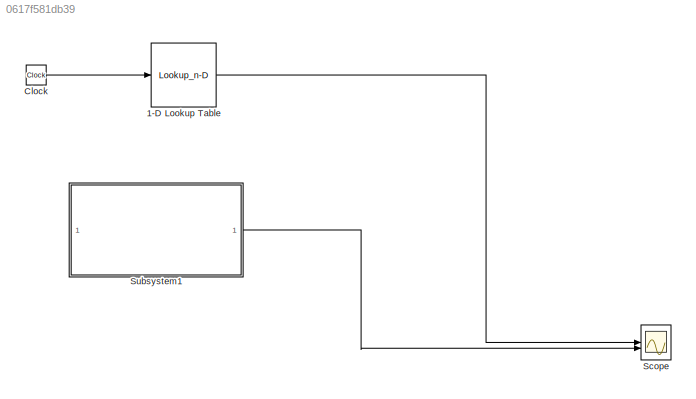
MODEL slx_0617f581db39
KIND model
CONFIG AbsTol = 1e-3
CONFIG EnableMultiTasking = off
CONFIG FixedStep = 0.001
CONFIG MaxStep = auto
CONFIG MinStep = auto
CONFIG RelTol = 1e-3
CONFIG SampleTimeConstraint = Unconstrained
CONFIG SolverName = ode14x
CONFIG StartTime = 0.0
CONFIG StopTime = 10
BLOCK [Lookup_n-D] 1-D Lookup Table
  BreakpointsForDimension1 = TemposR
  InputPortMap = u0
  InternalRulePriority = Speed
  NumberOfTableDimensions = 1
  RndMeth = Simplest
  Table = AnguloReal
BLOCK [Clock] Clock
BLOCK [Scope] Scope
  Floating = off
  NumInputPorts = 2
  ScopeSpecificationString = Simulink.scopes.TimeScopeBlockCfg('CurrentConfiguration', extmgr.ConfigurationSet(extmgr.Configuration('Core','General UI',true),extmgr.Configuration('Core','Source UI',true),extmgr.Configuration('Sources','WiredSimulink',true,'DataLogging',true,'DataLoggingVariableName','Data','DataLoggingSaveFormat','StructureWithTime'),extmgr.Configuration('Visuals','Time Domain',true,'SerializedDisplays',{stru...<+1530ch>
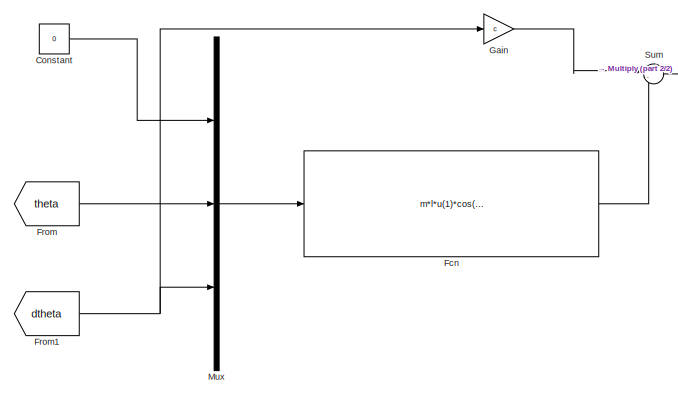
[diagram: Subsystem1 - part 1/2, left side, full height]
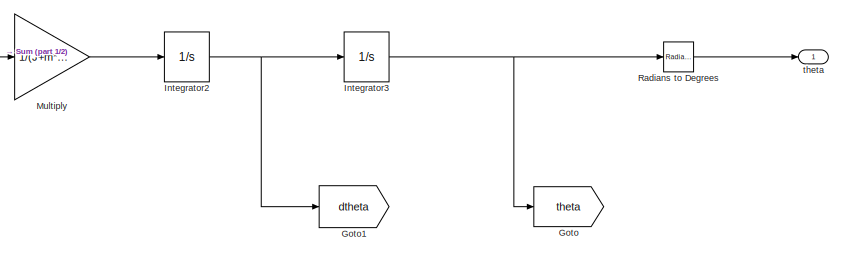
[diagram: Subsystem1 - part 2/2, bottom right region]
BLOCK [SubSystem] Subsystem1
BLOCK [Constant] Subsystem1/Constant
  Value = 0
BLOCK [Fcn] Subsystem1/Fcn
  Expr = m*l*u(1)*cos(u(2)) + m*l*g*sin(u(2))
BLOCK [From] Subsystem1/From
  GotoTag = theta
BLOCK [From] Subsystem1/From1
  GotoTag = dtheta
BLOCK [Gain] Subsystem1/Gain
  Gain = c
BLOCK [Goto] Subsystem1/Goto
  GotoTag = theta
BLOCK [Goto] Subsystem1/Goto1
  GotoTag = dtheta
BLOCK [Integrator] Subsystem1/Integrator2
BLOCK [Integrator] Subsystem1/Integrator3
  InitialCondition = 328*pi/180
BLOCK [Gain] Subsystem1/Multiply
  Gain = 1/(J+m*l^2)
BLOCK [Mux] Subsystem1/Mux
  DisplayOption = bar
  Inputs = 3
BLOCK [Reference] Subsystem1/Radians to Degrees  REF=simulink_extras/Transformations/Radians
to Degrees
  SourceBlock = simulink_extras/Transformations/Radians\nto Degrees
  SourceType = RadiansToDegrees
BLOCK [Sum] Subsystem1/Sum
  Inputs = |-+
BLOCK [Outport] Subsystem1/theta
LINE 1-D Lookup Table:1 -> Scope:1
LINE Clock:1 -> 1-D Lookup Table:1
LINE Subsystem1/Constant:1 -> Subsystem1/Mux:1
LINE Subsystem1/Fcn:1 -> Subsystem1/Sum:2
NET Subsystem1/From1:1 -> Subsystem1/Gain:1, Subsystem1/Mux:3
LINE Subsystem1/From:1 -> Subsystem1/Mux:2
LINE Subsystem1/Gain:1 -> Subsystem1/Sum:1
NET Subsystem1/Integrator2:1 -> Subsystem1/Goto1:1, Subsystem1/Integrator3:1
NET Subsystem1/Integrator3:1 -> Subsystem1/Goto:1, Subsystem1/Radians to Degrees:1
LINE Subsystem1/Multiply:1 -> Subsystem1/Integrator2:1
LINE Subsystem1/Mux:1 -> Subsystem1/Fcn:1
LINE Subsystem1/Radians to Degrees:1 -> Subsystem1/theta:1
LINE Subsystem1/Sum:1 -> Subsystem1/Multiply:1
LINE Subsystem1:1 -> Scope:2
note: NET lines group one-source signal fan-out (src -> all destinations, sorted); 1:1 wires keep LINE
